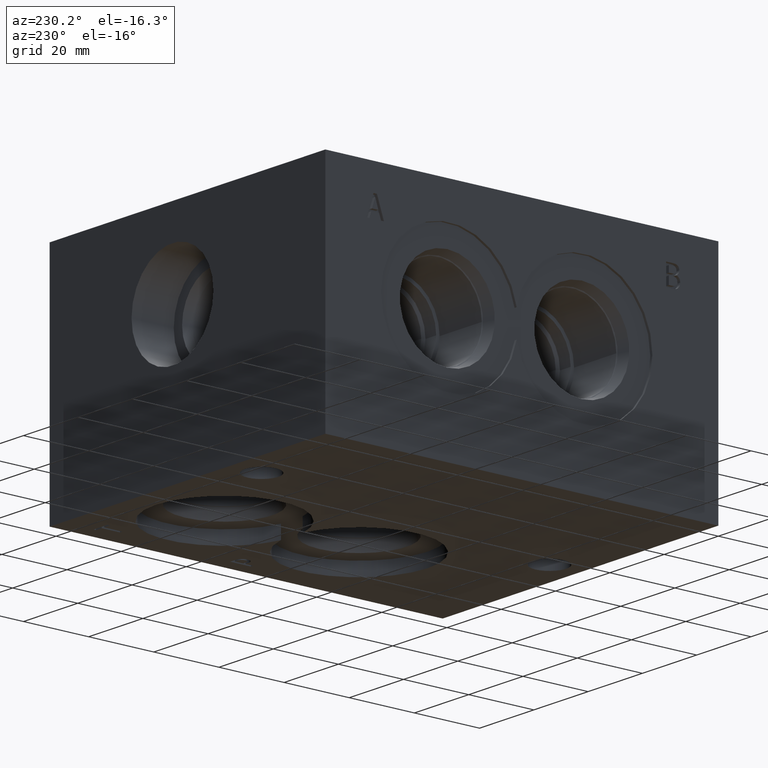
[diagram: clean part render]
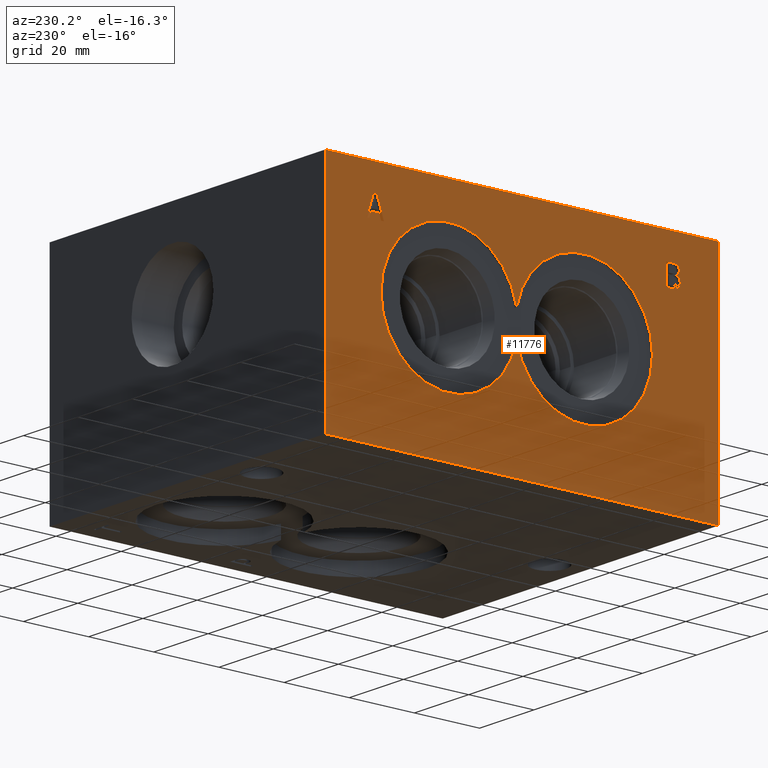
[diagram: same view with one face highlighted and labeled with its STEP entity id]
A machine part, auxiliary view. The second image highlights one B-rep face of the part: STEP entity #11776.
In plain terms, the highlighted planar face has unit normal (-1, 0, 0).
Its self-contained STEP definition (entity closure, byte-faithful):
#151=CIRCLE('',#12274,21.0185);
#152=CIRCLE('',#12275,21.0185);
#439=FACE_BOUND('',#2004,.T.);
#440=FACE_BOUND('',#2005,.T.);
#441=FACE_BOUND('',#2006,.T.);
#737=B_SPLINE_CURVE_WITH_KNOTS('',2,(#19341,#19342,#19343,#19344),
 .UNSPECIFIED.,.F.,.F.,(3,1,3),(0.,1.,2.),.UNSPECIFIED.);
#739=B_SPLINE_CURVE_WITH_KNOTS('',2,(#19368,#19369,#19370,#19371),
 .UNSPECIFIED.,.F.,.F.,(3,1,3),(0.,1.,2.),.UNSPECIFIED.);
#741=B_SPLINE_CURVE_WITH_KNOTS('',2,(#19387,#19388,#19389,#19390),
 .UNSPECIFIED.,.F.,.F.,(3,1,3),(0.,1.,2.),.UNSPECIFIED.);
#743=B_SPLINE_CURVE_WITH_KNOTS('',2,(#19406,#19407,#19408,#19409),
 .UNSPECIFIED.,.F.,.F.,(3,1,3),(0.,1.,2.),.UNSPECIFIED.);
#745=B_SPLINE_CURVE_WITH_KNOTS('',2,(#19443,#19444,#19445,#19446),
 .UNSPECIFIED.,.F.,.F.,(3,1,3),(0.,1.,2.),.UNSPECIFIED.);
#747=B_SPLINE_CURVE_WITH_KNOTS('',2,(#19461,#19462,#19463,#19464),
 .UNSPECIFIED.,.F.,.F.,(3,1,3),(0.,1.,2.),.UNSPECIFIED.);
#1353=FACE_OUTER_BOUND('',#2003,.T.);
#2003=EDGE_LOOP('',(#9621,#9622,#9623,#9624));
#2004=EDGE_LOOP('',(#9625,#9626,#9627,#9628,#9629,#9630,#9631,#9632,#9633,
#9634));
#2005=EDGE_LOOP('',(#9635,#9636));
#2006=EDGE_LOOP('',(#9637,#9638,#9639,#9640,#9641,#9642,#9643,#9644));
#2269=LINE('',#15499,#3374);
#2682=LINE('',#18101,#3787);
#3151=LINE('',#19355,#4256);
#3157=LINE('',#19418,#4262);
#3160=LINE('',#19424,#4265);
#3163=LINE('',#19430,#4268);
#3167=LINE('',#19472,#4272);
#3168=LINE('',#19473,#4273);
#3169=LINE('',#19480,#4274);
#3170=LINE('',#19482,#4275);
#3171=LINE('',#19484,#4276);
#3172=LINE('',#19486,#4277);
#3173=LINE('',#19488,#4278);
#3174=LINE('',#19490,#4279);
#3175=LINE('',#19492,#4280);
#3176=LINE('',#19493,#4281);
#3374=VECTOR('',#12779,10.);
#3787=VECTOR('',#13438,10.);
#4256=VECTOR('',#14251,10.);
#4262=VECTOR('',#14259,10.);
#4265=VECTOR('',#14264,10.);
#4268=VECTOR('',#14269,10.);
#4272=VECTOR('',#14277,10.);
#4273=VECTOR('',#14278,10.);
#4274=VECTOR('',#14283,10.);
#4275=VECTOR('',#14284,10.);
#4276=VECTOR('',#14285,10.);
#4277=VECTOR('',#14286,10.);
#4278=VECTOR('',#14287,10.);
#4279=VECTOR('',#14288,10.);
#4280=VECTOR('',#14289,10.);
#4281=VECTOR('',#14290,10.);
#4470=VERTEX_POINT('',#15495);
#4472=VERTEX_POINT('',#15498);
#4890=VERTEX_POINT('',#18099);
#5227=VERTEX_POINT('',#19339);
#5228=VERTEX_POINT('',#19340);
#5231=VERTEX_POINT('',#19354);
#5233=VERTEX_POINT('',#19367);
#5235=VERTEX_POINT('',#19386);
#5237=VERTEX_POINT('',#19405);
#5239=VERTEX_POINT('',#19417);
#5241=VERTEX_POINT('',#19423);
#5243=VERTEX_POINT('',#19429);
#5245=VERTEX_POINT('',#19442);
#5247=VERTEX_POINT('',#19471);
#5248=VERTEX_POINT('',#19474);
#5249=VERTEX_POINT('',#19475);
#5250=VERTEX_POINT('',#19478);
#5251=VERTEX_POINT('',#19479);
#5252=VERTEX_POINT('',#19481);
#5253=VERTEX_POINT('',#19483);
#5254=VERTEX_POINT('',#19485);
#5255=VERTEX_POINT('',#19487);
#5256=VERTEX_POINT('',#19489);
#5257=VERTEX_POINT('',#19491);
#5628=EDGE_CURVE('',#4472,#4470,#2269,.T.);
#6253=EDGE_CURVE('',#4470,#4890,#2682,.T.);
#6756=EDGE_CURVE('',#5227,#5228,#737,.T.);
#6760=EDGE_CURVE('',#5231,#5227,#3151,.T.);
#6763=EDGE_CURVE('',#5233,#5231,#739,.T.);
#6766=EDGE_CURVE('',#5235,#5233,#741,.T.);
#6769=EDGE_CURVE('',#5237,#5235,#743,.T.);
#6772=EDGE_CURVE('',#5239,#5237,#3157,.T.);
#6775=EDGE_CURVE('',#5241,#5239,#3160,.T.);
#6778=EDGE_CURVE('',#5243,#5241,#3163,.T.);
#6781=EDGE_CURVE('',#5245,#5243,#745,.T.);
#6784=EDGE_CURVE('',#5228,#5245,#747,.T.);
#6786=EDGE_CURVE('',#5247,#4890,#3167,.T.);
#6787=EDGE_CURVE('',#4472,#5247,#3168,.T.);
#6788=EDGE_CURVE('',#5248,#5249,#151,.T.);
#6789=EDGE_CURVE('',#5249,#5248,#152,.T.);
#6790=EDGE_CURVE('',#5250,#5251,#3169,.T.);
#6791=EDGE_CURVE('',#5251,#5252,#3170,.T.);
#6792=EDGE_CURVE('',#5252,#5253,#3171,.T.);
#6793=EDGE_CURVE('',#5253,#5254,#3172,.T.);
#6794=EDGE_CURVE('',#5254,#5255,#3173,.T.);
#6795=EDGE_CURVE('',#5255,#5256,#3174,.T.);
#6796=EDGE_CURVE('',#5256,#5257,#3175,.T.);
#6797=EDGE_CURVE('',#5257,#5250,#3176,.T.);
#9621=ORIENTED_EDGE('',*,*,#5628,.T.);
#9622=ORIENTED_EDGE('',*,*,#6253,.T.);
#9623=ORIENTED_EDGE('',*,*,#6786,.F.);
#9624=ORIENTED_EDGE('',*,*,#6787,.F.);
#9625=ORIENTED_EDGE('',*,*,#6756,.T.);
#9626=ORIENTED_EDGE('',*,*,#6784,.T.);
#9627=ORIENTED_EDGE('',*,*,#6781,.T.);
#9628=ORIENTED_EDGE('',*,*,#6778,.T.);
#9629=ORIENTED_EDGE('',*,*,#6775,.T.);
#9630=ORIENTED_EDGE('',*,*,#6772,.T.);
#9631=ORIENTED_EDGE('',*,*,#6769,.T.);
#9632=ORIENTED_EDGE('',*,*,#6766,.T.);
#9633=ORIENTED_EDGE('',*,*,#6763,.T.);
#9634=ORIENTED_EDGE('',*,*,#6760,.T.);
#9635=ORIENTED_EDGE('',*,*,#6788,.T.);
#9636=ORIENTED_EDGE('',*,*,#6789,.T.);
#9637=ORIENTED_EDGE('',*,*,#6790,.T.);
#9638=ORIENTED_EDGE('',*,*,#6791,.T.);
#9639=ORIENTED_EDGE('',*,*,#6792,.T.);
#9640=ORIENTED_EDGE('',*,*,#6793,.T.);
#9641=ORIENTED_EDGE('',*,*,#6794,.T.);
#9642=ORIENTED_EDGE('',*,*,#6795,.T.);
#9643=ORIENTED_EDGE('',*,*,#6796,.T.);
#9644=ORIENTED_EDGE('',*,*,#6797,.T.);
#10846=PLANE('',#12273);
#11776=ADVANCED_FACE('',(#1353,#439,#440,#441),#10846,.T.);
#12273=AXIS2_PLACEMENT_3D('',#19470,#14275,#14276);
#12274=AXIS2_PLACEMENT_3D('',#19476,#14279,#14280);
#12275=AXIS2_PLACEMENT_3D('',#19477,#14281,#14282);
#12779=DIRECTION('',(0.,-1.,0.));
#13438=DIRECTION('',(0.,0.,1.));
#14251=DIRECTION('',(0.,0.,-1.));
#14259=DIRECTION('',(0.,-1.,0.));
#14264=DIRECTION('',(0.,-3.14708893596576E-15,1.));
#14269=DIRECTION('',(0.,1.,0.));
#14275=DIRECTION('center_axis',(-1.,0.,0.));
#14276=DIRECTION('ref_axis',(0.,-1.,0.));
#14277=DIRECTION('',(0.,-1.,0.));
#14278=DIRECTION('',(0.,0.,1.));
#14279=DIRECTION('center_axis',(1.,0.,0.));
#14280=DIRECTION('ref_axis',(0.,0.,1.));
#14281=DIRECTION('center_axis',(1.,0.,0.));
#14282=DIRECTION('ref_axis',(0.,0.,1.));
#14283=DIRECTION('',(0.,1.,0.));
#14284=DIRECTION('',(0.,-0.319451166674572,0.947602739606769));
#14285=DIRECTION('',(0.,-1.,0.));
#14286=DIRECTION('',(0.,-0.319451166674564,-0.947602739606772));
#14287=DIRECTION('',(0.,1.,9.97689851504626E-15));
#14288=DIRECTION('',(0.,0.308774363938383,0.951135317488761));
#14289=DIRECTION('',(0.,1.,0.));
#14290=DIRECTION('',(0.,0.308774363938385,-0.951135317488761));
#15495=CARTESIAN_POINT('',(0.,0.,0.));
#15498=CARTESIAN_POINT('',(0.,120.65,0.));
#15499=CARTESIAN_POINT('',(0.,120.65,0.));
#18099=CARTESIAN_POINT('',(0.,0.,69.85));
#18101=CARTESIAN_POINT('',(0.,0.,0.));
#19339=CARTESIAN_POINT('',(0.,12.9071212072233,59.0925647768055));
#19340=CARTESIAN_POINT('',(0.,11.7184259252378,57.5127836011797));
#19341=CARTESIAN_POINT('Ctrl Pts',(0.,12.9071212072233,59.0925647768055));
#19342=CARTESIAN_POINT('Ctrl Pts',(0.,12.3410758348493,58.938188766158));
#19343=CARTESIAN_POINT('Ctrl Pts',(0.,11.7184259252378,58.1199959097264));
#19344=CARTESIAN_POINT('Ctrl Pts',(0.,11.7184259252378,57.5127836011797));
#19354=CARTESIAN_POINT('',(0.,12.9071212072233,59.123439978935));
#19355=CARTESIAN_POINT('',(0.,12.9071212072233,29.5617199894675));
#19367=CARTESIAN_POINT('',(0.,12.0168862124896,60.4819488726327));
#19368=CARTESIAN_POINT('Ctrl Pts',(0.,12.0168862124896,60.4819488726327));
#19369=CARTESIAN_POINT('Ctrl Pts',(0.,12.0168862124896,60.034258441755));
#19370=CARTESIAN_POINT('Ctrl Pts',(0.,12.4903059784752,59.3241287927767));
#19371=CARTESIAN_POINT('Ctrl Pts',(0.,12.9071212072233,59.123439978935));
#19386=CARTESIAN_POINT('',(0.,12.6755571912521,61.6552065535534));
#19387=CARTESIAN_POINT('Ctrl Pts',(0.,12.6755571912521,61.6552065535534));
#19388=CARTESIAN_POINT('Ctrl Pts',(0.,12.3307841008061,61.4751012077981));
#19389=CARTESIAN_POINT('Ctrl Pts',(0.,12.0168862124896,60.8833265003161));
#19390=CARTESIAN_POINT('Ctrl Pts',(0.,12.0168862124896,60.4819488726327));
#19405=CARTESIAN_POINT('',(0.,14.3428181062448,61.9124999046326));
#19406=CARTESIAN_POINT('Ctrl Pts',(0.,14.3428181062448,61.9124999046326));
#19407=CARTESIAN_POINT('Ctrl Pts',(0.,13.6635636593959,61.9124999046326));
#19408=CARTESIAN_POINT('Ctrl Pts',(0.,12.9843092125471,61.8250201652657));
#19409=CARTESIAN_POINT('Ctrl Pts',(0.,12.6755571912521,61.6552065535534));
#19417=CARTESIAN_POINT('',(0.,16.0255166223022,61.9124999046326));
#19418=CARTESIAN_POINT('',(0.,68.3377583111511,61.9124999046326));
#19423=CARTESIAN_POINT('',(0.,16.0255166223022,55.5625));
#19424=CARTESIAN_POINT('',(0.,16.0255166223023,27.7812499999998));
#19429=CARTESIAN_POINT('',(0.,14.2038796966621,55.5625));
#19430=CARTESIAN_POINT('',(0.,67.426939848331,55.5625));
#19442=CARTESIAN_POINT('',(0.,12.3770969040004,56.0770867021582));
#19443=CARTESIAN_POINT('Ctrl Pts',(0.,12.3770969040004,56.0770867021582));
#19444=CARTESIAN_POINT('Ctrl Pts',(0.,12.7373075955111,55.7992098829928));
#19445=CARTESIAN_POINT('Ctrl Pts',(0.,13.5555004519427,55.5625));
#19446=CARTESIAN_POINT('Ctrl Pts',(0.,14.2038796966621,55.5625));
#19461=CARTESIAN_POINT('Ctrl Pts',(0.,11.7184259252378,57.5127836011797));
#19462=CARTESIAN_POINT('Ctrl Pts',(0.,11.7184259252378,57.0393638351941));
#19463=CARTESIAN_POINT('Ctrl Pts',(0.,12.0786366167486,56.313796585151));
#19464=CARTESIAN_POINT('Ctrl Pts',(0.,12.3770969040004,56.0770867021582));
#19470=CARTESIAN_POINT('Origin',(0.,120.65,0.));
#19471=CARTESIAN_POINT('',(0.,120.65,69.85));
#19472=CARTESIAN_POINT('',(0.,120.65,69.85));
#19473=CARTESIAN_POINT('',(0.,120.65,0.));
#19474=CARTESIAN_POINT('',(0.,61.9125,42.083834333905));
#19475=CARTESIAN_POINT('',(0.,61.9125,34.116165666095));
#19476=CARTESIAN_POINT('Origin',(0.,41.275,38.1));
#19477=CARTESIAN_POINT('Origin',(0.,82.55,38.1));
#19478=CARTESIAN_POINT('',(0.,107.13695301059,55.5625));
#19479=CARTESIAN_POINT('',(0.,107.991166936173,55.5625));
#19480=CARTESIAN_POINT('',(0.,113.893476505295,55.5625));
#19481=CARTESIAN_POINT('',(0.,105.850486255194,61.9124999046326));
#19482=CARTESIAN_POINT('',(0.,117.046817861716,28.7003047064423));
#19483=CARTESIAN_POINT('',(0.,104.811021116835,61.9124999046326));
#19484=CARTESIAN_POINT('',(0.,113.250243127597,61.9124999046326));
#19485=CARTESIAN_POINT('',(0.,102.670340435857,55.5625));
#19486=CARTESIAN_POINT('',(0.,96.2483443515334,36.5126366152528));
#19487=CARTESIAN_POINT('',(0.,103.56057543059,55.5625));
#19488=CARTESIAN_POINT('',(0.,111.660170217928,55.5625000000001));
#19489=CARTESIAN_POINT('',(0.,104.136912537008,57.3378241224459));
#19490=CARTESIAN_POINT('',(0.,96.2162722201025,32.9394231462655));
#19491=CARTESIAN_POINT('',(0.,106.560615904173,57.3378241224459));
#19492=CARTESIAN_POINT('',(0.,112.393456268504,57.3378241224459));
#19493=CARTESIAN_POINT('',(0.,115.651932088796,29.3333233751693));